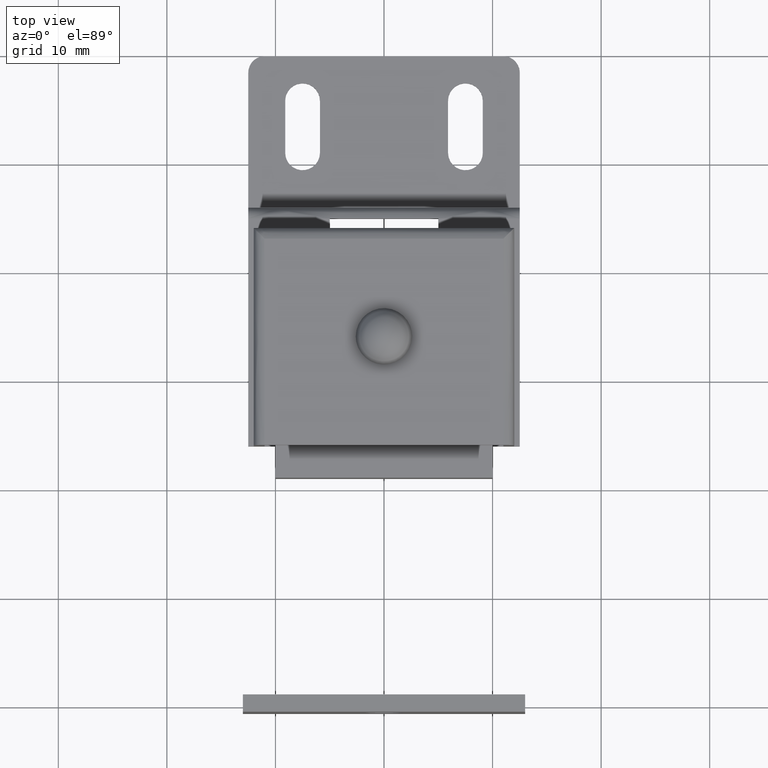
[diagram: clean part render]
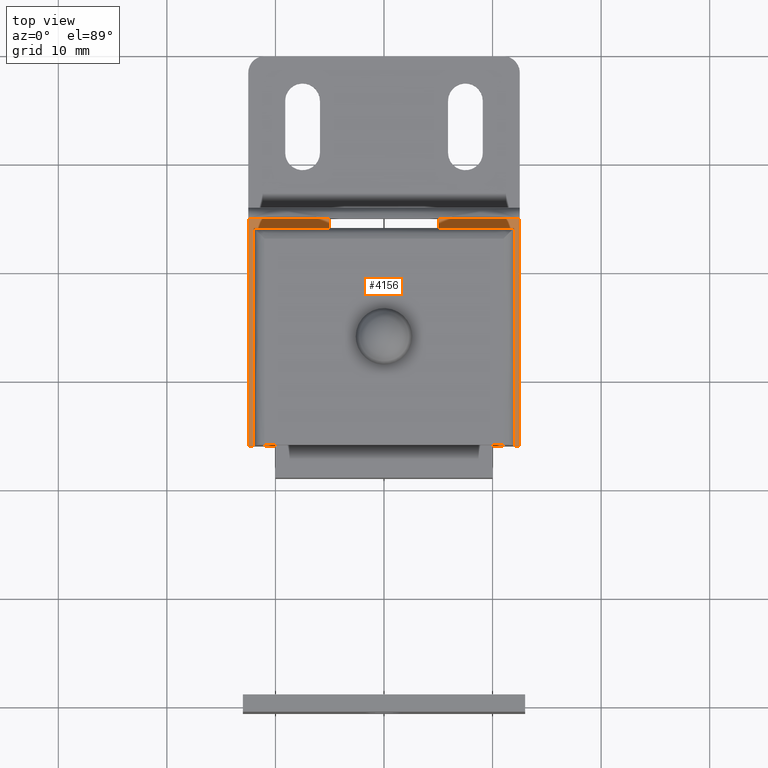
[diagram: same view with one face highlighted and labeled with its STEP entity id]
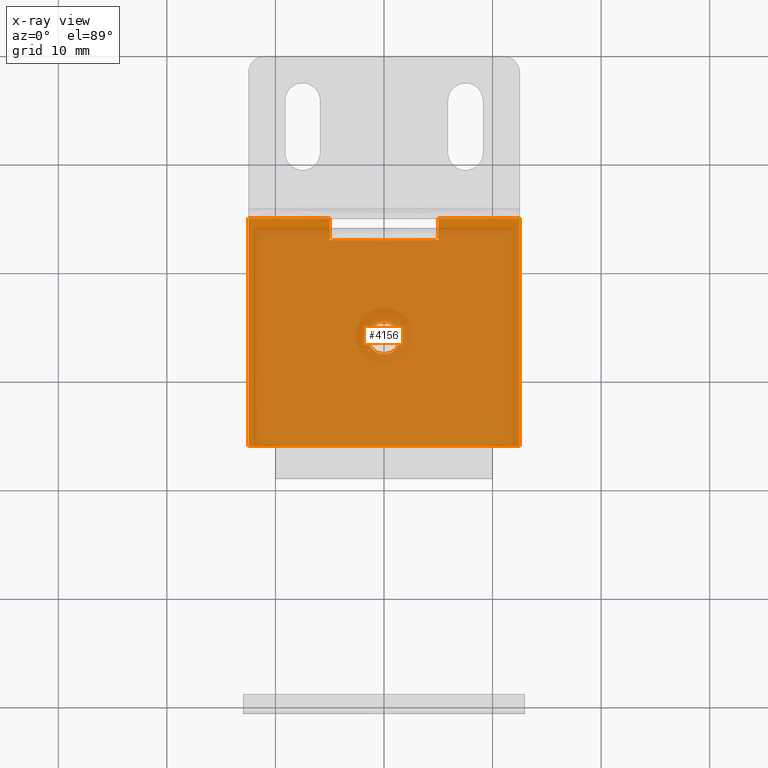
[diagram: x-ray of the same camera — body ghosted, the highlighted face saturated]
A machine part, top view. The second image highlights one B-rep face of the part: STEP entity #4156.
The next image is the same camera in x-ray: the body ghosted, the highlighted face saturated — about 93% of this face is hidden behind the body in this view.
In plain terms, the highlighted face is a freeform B-spline surface patch.
Its self-contained STEP definition (entity closure, byte-faithful):
#2975=CARTESIAN_POINT('',(0.117688643636623,-27.495376000596160,4.0));
#2976=VERTEX_POINT('',#2975);
#2982=CARTESIAN_POINT('',(1.500000000000000,-26.0,4.0));
#2983=VERTEX_POINT('',#2982);
#2984=CARTESIAN_POINT('',(1.500000000000000,-26.0,4.0));
#2985=CARTESIAN_POINT('',(1.500000000000000,-27.386585737445589,4.000000000000000));
#2986=CARTESIAN_POINT('',(0.117688643636623,-27.495376000596160,4.0));
#2994=(BOUNDED_CURVE()B_SPLINE_CURVE(2,(#2984,#2985,#2986),.UNSPECIFIED.,.F.,.U.)B_SPLINE_CURVE_WITH_KNOTS((3,3),(0.0,0.236331300627625),.UNSPECIFIED.)CURVE()GEOMETRIC_REPRESENTATION_ITEM()RATIONAL_B_SPLINE_CURVE((1.0,0.723120658611221,0.969723356161084))REPRESENTATION_ITEM(''));
#2995=EDGE_CURVE('',#2983,#2976,#2994,.T.);
#2997=CARTESIAN_POINT('',(-0.117688643636623,-24.504623999403830,4.0));
#2998=VERTEX_POINT('',#2997);
#2999=CARTESIAN_POINT('',(-0.117688643636623,-24.504623999403833,4.000000000000001));
#3000=CARTESIAN_POINT('',(-0.058935160534036,-24.500000000000000,4.0));
#3001=CARTESIAN_POINT('',(0.0,-24.500000000000000,4.0));
#3002=CARTESIAN_POINT('',(1.500000000000000,-24.500000000000004,4.000000000000000));
#3003=CARTESIAN_POINT('',(1.500000000000000,-26.0,4.0));
#3011=(BOUNDED_CURVE()B_SPLINE_CURVE(2,(#2999,#3000,#3001,#3002,#3003),.UNSPECIFIED.,.F.,.U.)B_SPLINE_CURVE_WITH_KNOTS((3,2,3),(0.736331300627625,0.750000000000000,1.0),.UNSPECIFIED.)CURVE()GEOMETRIC_REPRESENTATION_ITEM()RATIONAL_B_SPLINE_CURVE((0.969723356161084,0.983986122575326,1.0,0.707106781186548,1.0))REPRESENTATION_ITEM(''));
#3012=EDGE_CURVE('',#2998,#2983,#3011,.T.);
#3088=CARTESIAN_POINT('',(-1.500000000000000,-26.0,4.0));
#3089=VERTEX_POINT('',#3088);
#3090=CARTESIAN_POINT('',(-1.500000000000000,-26.0,4.0));
#3091=CARTESIAN_POINT('',(-1.500000000000000,-24.613414262554411,4.000000000000000));
#3092=CARTESIAN_POINT('',(-0.117688643636623,-24.504623999403833,4.000000000000001));
#3100=(BOUNDED_CURVE()B_SPLINE_CURVE(2,(#3090,#3091,#3092),.UNSPECIFIED.,.F.,.U.)B_SPLINE_CURVE_WITH_KNOTS((3,3),(0.500000000000000,0.736331300627625),.UNSPECIFIED.)CURVE()GEOMETRIC_REPRESENTATION_ITEM()RATIONAL_B_SPLINE_CURVE((1.0,0.723120658611221,0.969723356161084))REPRESENTATION_ITEM(''));
#3101=EDGE_CURVE('',#3089,#2998,#3100,.T.);
#3103=CARTESIAN_POINT('',(0.117688643636623,-27.495376000596160,4.0));
#3104=CARTESIAN_POINT('',(0.058935160534036,-27.500000000000000,4.0));
#3105=CARTESIAN_POINT('',(0.0,-27.500000000000000,4.0));
#3106=CARTESIAN_POINT('',(-1.500000000000000,-27.500000000000004,4.000000000000000));
#3107=CARTESIAN_POINT('',(-1.500000000000000,-26.0,4.0));
#3115=(BOUNDED_CURVE()B_SPLINE_CURVE(2,(#3103,#3104,#3105,#3106,#3107),.UNSPECIFIED.,.F.,.U.)B_SPLINE_CURVE_WITH_KNOTS((3,2,3),(0.236331300627625,0.250000000000000,0.500000000000000),.UNSPECIFIED.)CURVE()GEOMETRIC_REPRESENTATION_ITEM()RATIONAL_B_SPLINE_CURVE((0.969723356161084,0.983986122575326,1.0,0.707106781186548,1.0))REPRESENTATION_ITEM(''));
#3116=EDGE_CURVE('',#2976,#3089,#3115,.T.);
#3811=CARTESIAN_POINT('',(5.0,-14.999999685840640,3.999999999999950));
#3812=VERTEX_POINT('',#3811);
#3818=CARTESIAN_POINT('',(-5.0,-15.0,4.0));
#3819=VERTEX_POINT('',#3818);
#3901=CARTESIAN_POINT('',(-5.0,-17.0,4.0));
#3902=VERTEX_POINT('',#3901);
#3903=CARTESIAN_POINT('',(-5.0,-17.0,4.0));
#3904=CARTESIAN_POINT('',(-5.0,-15.0,4.0));
#3905=QUASI_UNIFORM_CURVE('',1,(#3903,#3904),.UNSPECIFIED.,.F.,.U.);
#3906=EDGE_CURVE('',#3902,#3819,#3905,.T.);
#3923=CARTESIAN_POINT('',(5.0,-17.0,4.0));
#3924=VERTEX_POINT('',#3923);
#3925=CARTESIAN_POINT('',(5.0,-17.0,4.0));
#3926=CARTESIAN_POINT('',(-5.0,-17.0,4.0));
#3927=QUASI_UNIFORM_CURVE('',1,(#3925,#3926),.UNSPECIFIED.,.F.,.U.);
#3928=EDGE_CURVE('',#3924,#3902,#3927,.T.);
#3945=CARTESIAN_POINT('',(5.0,-14.999999685840640,3.999999999999950));
#3946=CARTESIAN_POINT('',(5.0,-17.0,4.0));
#3947=QUASI_UNIFORM_CURVE('',1,(#3945,#3946),.UNSPECIFIED.,.F.,.U.);
#3948=EDGE_CURVE('',#3812,#3924,#3947,.T.);
#4015=CARTESIAN_POINT('',(-12.500002000000000,-36.0,4.0));
#4016=VERTEX_POINT('',#4015);
#4022=CARTESIAN_POINT('',(-12.500002000000000,-14.999999685840640,3.999999999999950));
#4023=VERTEX_POINT('',#4022);
#4024=CARTESIAN_POINT('',(-12.500002000000000,-14.999999685840640,3.999999999999950));
#4025=CARTESIAN_POINT('',(-12.500002000000000,-36.0,4.0));
#4026=QUASI_UNIFORM_CURVE('',1,(#4024,#4025),.UNSPECIFIED.,.F.,.U.);
#4027=EDGE_CURVE('',#4023,#4016,#4026,.T.);
#4055=CARTESIAN_POINT('',(12.500000000000000,-14.999999685840640,3.999999999999950));
#4056=VERTEX_POINT('',#4055);
#4070=CARTESIAN_POINT('',(12.500000000000000,-36.0,4.0));
#4071=VERTEX_POINT('',#4070);
#4072=CARTESIAN_POINT('',(12.500000000000000,-14.999999685840640,3.999999999999950));
#4073=CARTESIAN_POINT('',(12.500000000000000,-36.0,4.0));
#4074=QUASI_UNIFORM_CURVE('',1,(#4072,#4073),.UNSPECIFIED.,.F.,.U.);
#4075=EDGE_CURVE('',#4056,#4071,#4074,.T.);
#4103=CARTESIAN_POINT('',(-5.0,-15.0,4.0));
#4104=CARTESIAN_POINT('',(-12.500002000000000,-14.999999685840640,3.999999999999950));
#4105=QUASI_UNIFORM_CURVE('',1,(#4103,#4104),.UNSPECIFIED.,.F.,.U.);
#4106=EDGE_CURVE('',#3819,#4023,#4105,.T.);
#4109=CARTESIAN_POINT('',(12.500000000000000,-14.999999685840640,3.999999999999950));
#4110=CARTESIAN_POINT('',(5.0,-14.999999685840640,3.999999999999950));
#4111=QUASI_UNIFORM_CURVE('',1,(#4109,#4110),.UNSPECIFIED.,.F.,.U.);
#4112=EDGE_CURVE('',#4056,#3812,#4111,.T.);
#4127=CARTESIAN_POINT('',(12.500000000000000,-36.0,4.0));
#4128=CARTESIAN_POINT('',(-12.500002000000000,-36.0,4.0));
#4129=QUASI_UNIFORM_CURVE('',1,(#4127,#4128),.UNSPECIFIED.,.F.,.U.);
#4130=EDGE_CURVE('',#4071,#4016,#4129,.T.);
#4135=CARTESIAN_POINT('',(-13.748752051445150,-37.048949974990187,4.0));
#4136=CARTESIAN_POINT('',(-13.748752051445150,-13.951049147586559,4.0));
#4137=CARTESIAN_POINT('',(13.748750721997450,-37.048949974990187,4.0));
#4138=CARTESIAN_POINT('',(13.748750721997450,-13.951049147586559,4.0));
#4139=B_SPLINE_SURFACE_WITH_KNOTS('',1,1,((#4135,#4137),(#4136,#4138)),.UNSPECIFIED.,.F.,.F.,.U.,(2,2),(2,2),(0.0,23.097900827403631),(0.0,27.497502773442601),.UNSPECIFIED.);
#4140=ORIENTED_EDGE('',*,*,#4112,.T.);
#4141=ORIENTED_EDGE('',*,*,#3948,.T.);
#4142=ORIENTED_EDGE('',*,*,#3928,.T.);
#4143=ORIENTED_EDGE('',*,*,#3906,.T.);
#4144=ORIENTED_EDGE('',*,*,#4106,.T.);
#4145=ORIENTED_EDGE('',*,*,#4027,.T.);
#4146=ORIENTED_EDGE('',*,*,#4130,.F.);
#4147=ORIENTED_EDGE('',*,*,#4075,.F.);
#4148=EDGE_LOOP('',(#4140,#4141,#4142,#4143,#4144,#4145,#4146,#4147));
#4149=FACE_OUTER_BOUND('',#4148,.T.);
#4150=ORIENTED_EDGE('',*,*,#3101,.T.);
#4151=ORIENTED_EDGE('',*,*,#3012,.T.);
#4152=ORIENTED_EDGE('',*,*,#2995,.T.);
#4153=ORIENTED_EDGE('',*,*,#3116,.T.);
#4154=EDGE_LOOP('',(#4150,#4151,#4152,#4153));
#4155=FACE_BOUND('',#4154,.T.);
#4156=ADVANCED_FACE('',(#4149,#4155),#4139,.F.);